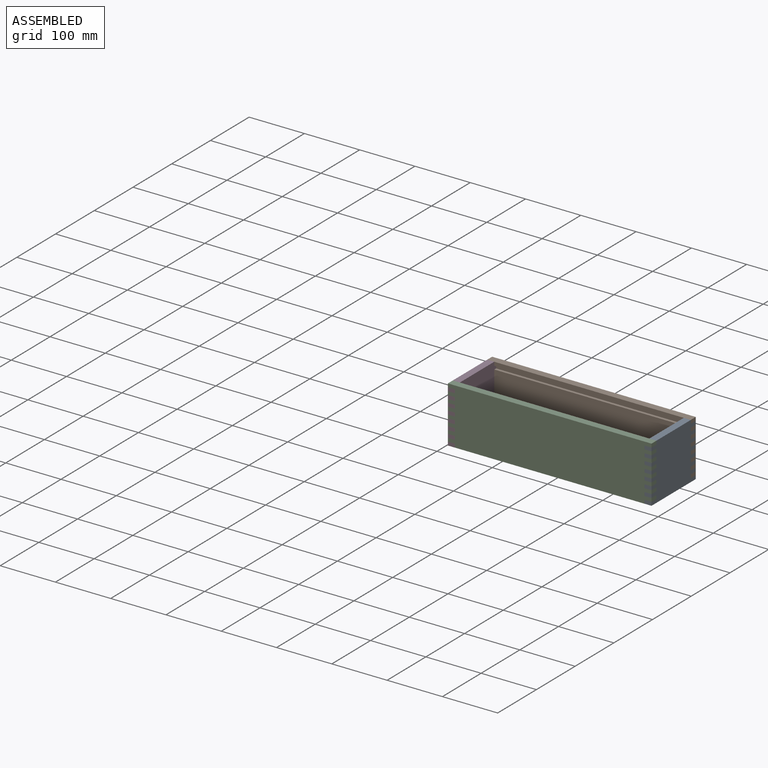
[diagram: assembled view]
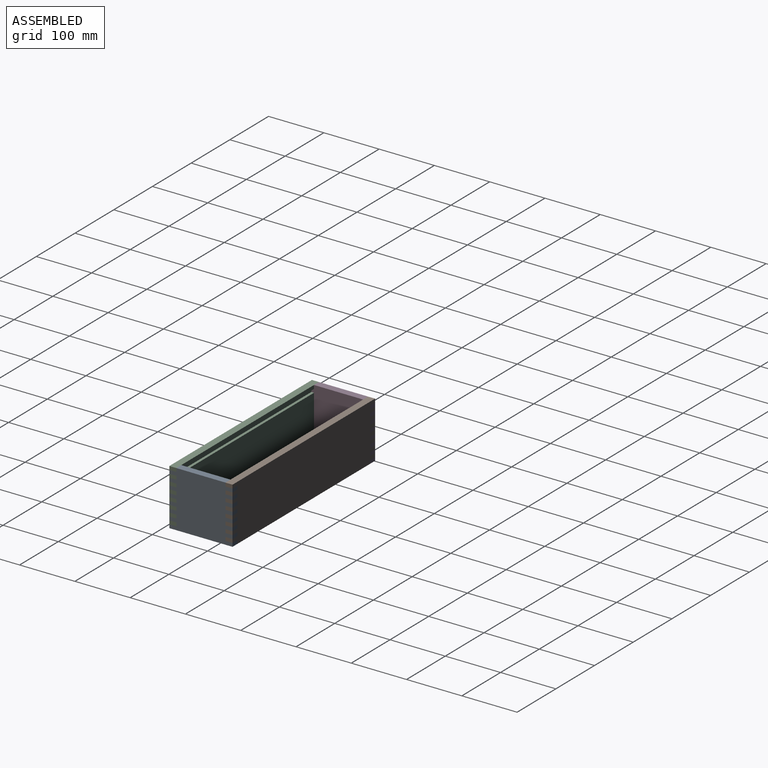
[diagram: assembled view, second angle]
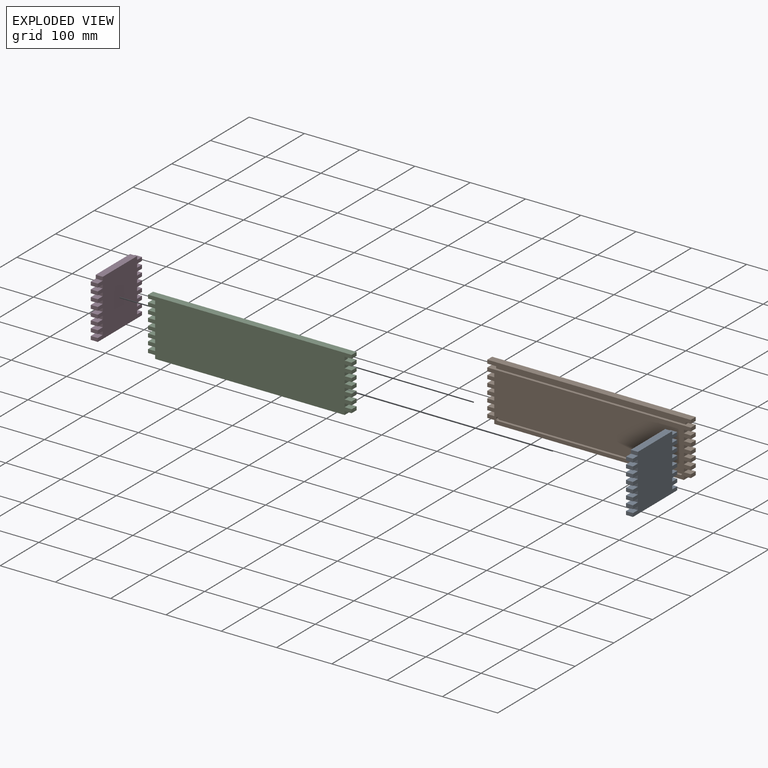
[diagram: exploded view]
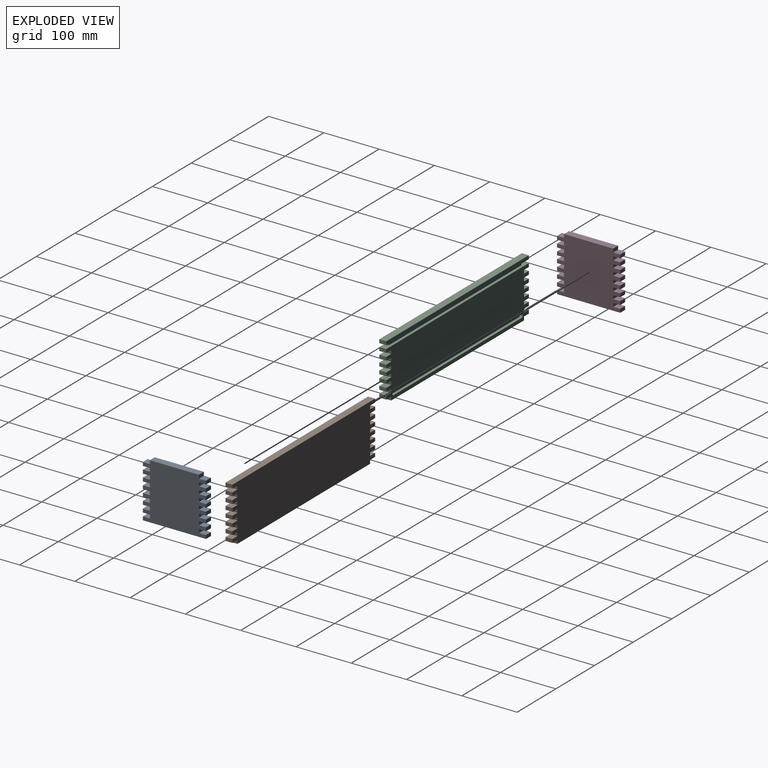
[diagram: exploded view, second angle]
ASSEMBLY  parts=4 mates=3
PART A: 66 faces, bbox 114.3x12.7x101.6 mm
  f0: plane 12.7x12.7mm, normal (0,0,1), area 161.3mm2, adj f1,f63,f64,f65
  f1: plane 12.7x6.35mm, normal (-1,0,0), area 80.6mm2, adj f0,f2,f64,f65
  f2: plane 12.7x12.7mm, normal (0,0,-1), area 161.3mm2, adj f1,f3,f64,f65
  f3: plane 12.7x6.35mm, normal (-1,0,0), area 80.6mm2, adj f2,f4,f64,f65
  f4: plane 12.7x12.7mm, normal (0,0,1), area 161.3mm2, adj f3,f5,f64,f65
  f5: plane 12.7x6.35mm, normal (-1,0,0), area 80.6mm2, adj f4,f6,f64,f65
  f6: plane 12.7x12.7mm, normal (0,0,-1), area 161.3mm2, adj f5,f7,f64,f65
  f7: plane 12.7x6.35mm, normal (-1,0,0), area 80.6mm2, adj f6,f8,f64,f65
  f8: plane 12.7x12.7mm, normal (0,0,1), area 161.3mm2, adj f7,f9,f64,f65
  f9: plane 12.7x6.35mm, normal (-1,0,0), area 80.6mm2, adj f8,f10,f64,f65
  f10: plane 12.7x12.7mm, normal (0,0,-1), area 161.3mm2, adj f9,f11,f64,f65
  f11: plane 12.7x6.35mm, normal (-1,0,0), area 80.6mm2, adj f10,f12,f64,f65
  f12: plane 12.7x12.7mm, normal (0,0,1), area 161.3mm2, adj f11,f13,f64,f65
  f13: plane 12.7x6.35mm, normal (-1,0,0), area 80.6mm2, adj f12,f14,f64,f65
  f14: plane 12.7x12.7mm, normal (0,0,-1), area 161.3mm2, adj f13,f15,f64,f65
  f15: plane 12.7x6.35mm, normal (-1,0,0), area 80.6mm2, adj f14,f16,f64,f65
  f16: plane 12.7x12.7mm, normal (0,0,1), area 161.3mm2, adj f15,f17,f64,f65
  f17: plane 12.7x6.35mm, normal (-1,0,0), area 80.6mm2, adj f16,f18,f64,f65
  f18: plane 12.7x12.7mm, normal (0,0,-1), area 161.3mm2, adj f17,f19,f64,f65
  f19: plane 12.7x6.35mm, normal (-1,0,0), area 80.6mm2, adj f18,f20,f64,f65
  f20: plane 12.7x12.7mm, normal (0,0,1), area 161.3mm2, adj f19,f21,f64,f65
  f21: plane 12.7x6.35mm, normal (-1,0,0), area 80.6mm2, adj f20,f22,f64,f65
  f22: plane 12.7x12.7mm, normal (0,0,-1), area 161.3mm2, adj f21,f23,f64,f65
  f23: plane 12.7x6.35mm, normal (-1,0,0), area 80.6mm2, adj f22,f24,f64,f65
  f24: plane 12.7x12.7mm, normal (0,0,1), area 161.3mm2, adj f23,f25,f64,f65
  f25: plane 12.7x6.35mm, normal (-1,0,0), area 80.6mm2, adj f24,f26,f64,f65
  f26: plane 12.7x12.7mm, normal (0,0,-1), area 161.3mm2, adj f25,f27,f64,f65
  f27: plane 12.7x6.35mm, normal (-1,0,0), area 80.6mm2, adj f26,f28,f64,f65
  f28: plane 12.7x12.7mm, normal (0,0,1), area 161.3mm2, adj f27,f29,f64,f65
  f29: plane 12.7x6.35mm, normal (-1,0,0), area 80.6mm2, adj f28,f30,f64,f65
  f30: plane 114.3x12.7mm, normal (0,0,-1), area 1451.6mm2, adj f29,f31,f64,f65
  f31: plane 12.7x6.35mm, normal (1,0,0), area 80.6mm2, adj f30,f32,f64,f65
  f32: plane 12.7x12.7mm, normal (0,0,1), area 161.3mm2, adj f31,f33,f64,f65
  f33: plane 12.7x6.35mm, normal (1,0,0), area 80.6mm2, adj f32,f34,f64,f65
  f34: plane 12.7x12.7mm, normal (0,0,-1), area 161.3mm2, adj f33,f35,f64,f65
  f35: plane 12.7x6.35mm, normal (1,0,0), area 80.6mm2, adj f34,f36,f64,f65
  f36: plane 12.7x12.7mm, normal (0,0,1), area 161.3mm2, adj f35,f37,f64,f65
  f37: plane 12.7x6.35mm, normal (1,0,0), area 80.6mm2, adj f36,f38,f64,f65
  f38: plane 12.7x12.7mm, normal (0,0,-1), area 161.3mm2, adj f37,f39,f64,f65
  f39: plane 12.7x6.35mm, normal (1,0,0), area 80.6mm2, adj f38,f40,f64,f65
  f40: plane 12.7x12.7mm, normal (0,0,1), area 161.3mm2, adj f39,f41,f64,f65
  f41: plane 12.7x6.35mm, normal (1,0,0), area 80.6mm2, adj f40,f42,f64,f65
  f42: plane 12.7x12.7mm, normal (0,0,-1), area 161.3mm2, adj f41,f43,f64,f65
  f43: plane 12.7x6.35mm, normal (1,0,0), area 80.6mm2, adj f42,f44,f64,f65
  f44: plane 12.7x12.7mm, normal (0,0,1), area 161.3mm2, adj f43,f45,f64,f65
  f45: plane 12.7x6.35mm, normal (1,0,0), area 80.6mm2, adj f44,f46,f64,f65
  f46: plane 12.7x12.7mm, normal (0,0,-1), area 161.3mm2, adj f45,f47,f64,f65
  f47: plane 12.7x6.35mm, normal (1,0,0), area 80.6mm2, adj f46,f48,f64,f65
  f48: plane 12.7x12.7mm, normal (0,0,1), area 161.3mm2, adj f47,f49,f64,f65
  f49: plane 12.7x6.35mm, normal (1,0,0), area 80.6mm2, adj f48,f50,f64,f65
  f50: plane 12.7x12.7mm, normal (0,0,-1), area 161.3mm2, adj f49,f51,f64,f65
  f51: plane 12.7x6.35mm, normal (1,0,0), area 80.6mm2, adj f50,f52,f64,f65
  f52: plane 12.7x12.7mm, normal (0,0,1), area 161.3mm2, adj f51,f53,f64,f65
  f53: plane 12.7x6.35mm, normal (1,0,0), area 80.6mm2, adj f52,f54,f64,f65
  f54: plane 12.7x12.7mm, normal (0,0,-1), area 161.3mm2, adj f53,f55,f64,f65
  f55: plane 12.7x6.35mm, normal (1,0,0), area 80.6mm2, adj f54,f56,f64,f65
  f56: plane 12.7x12.7mm, normal (0,0,1), area 161.3mm2, adj f55,f57,f64,f65
  f57: plane 12.7x6.35mm, normal (1,0,0), area 80.6mm2, adj f56,f58,f64,f65
  f58: plane 12.7x12.7mm, normal (0,0,-1), area 161.3mm2, adj f57,f59,f64,f65
  f59: plane 12.7x6.35mm, normal (1,0,0), area 80.6mm2, adj f58,f60,f64,f65
  f60: plane 12.7x12.7mm, normal (0,0,1), area 161.3mm2, adj f59,f61,f64,f65
  f61: plane 12.7x6.35mm, normal (1,0,0), area 80.6mm2, adj f60,f62,f64,f65
  f62: plane 88.9x12.7mm, normal (0,0,1), area 1129mm2, adj f61,f63,f64,f65
  f63: plane 12.7x6.35mm, normal (-1,0,0), area 80.6mm2, adj f0,f62,f64,f65
  f64: plane 114.3x101.6mm, normal (0,-1,0), area 10322.6mm2, adj f0,f1,f2,f3,f4,f5,f6,f7
  f65: plane 114.3x101.6mm, normal (0,1,0), area 10322.6mm2, adj f0,f1,f2,f3,f4,f5,f6,f7
PART B: 71 faces, bbox 368.3x12.7x101.6 mm
  f0: plane 368.3x88.9mm, normal (0,-1,0), area 29484.4mm2, adj f2,f3,f4,f5,f6,f7,f8,f9
  f1: plane 7.94x6.35mm, normal (-1,0,0), area 50.4mm2, adj f17,f18,f64,f65
  f2: plane 12.7x6.35mm, normal (1,0,0), area 80.6mm2, adj f0,f3,f62,f64
  f3: plane 12.7x12.7mm, normal (0,0,-1), area 161.3mm2, adj f0,f2,f4,f64
  f4: plane 12.7x6.35mm, normal (1,0,0), area 80.6mm2, adj f0,f3,f5,f64
  f5: plane 12.7x12.7mm, normal (0,0,1), area 161.3mm2, adj f0,f4,f6,f64
  f6: plane 12.7x6.35mm, normal (1,0,0), area 80.6mm2, adj f0,f5,f7,f64
  f7: plane 12.7x12.7mm, normal (0,0,-1), area 161.3mm2, adj f0,f6,f8,f64
  f8: plane 12.7x6.35mm, normal (1,0,0), area 80.6mm2, adj f0,f7,f9,f64
  f9: plane 12.7x12.7mm, normal (0,0,1), area 161.3mm2, adj f0,f8,f10,f64
  f10: plane 12.7x6.35mm, normal (1,0,0), area 80.6mm2, adj f0,f9,f11,f64
  f11: plane 12.7x12.7mm, normal (0,0,-1), area 161.3mm2, adj f0,f10,f12,f64
  f12: plane 12.7x6.35mm, normal (1,0,0), area 80.6mm2, adj f0,f11,f18,f64
  f13: plane 7.94x6.35mm, normal (1,0,0), area 50.4mm2, adj f17,f18,f64,f65
  f14: plane 12.7x6.35mm, normal (1,0,0), area 80.6mm2, adj f15,f17,f63,f64
  f15: plane 368.3x12.7mm, normal (0,0,1), area 4677.4mm2, adj f14,f16,f63,f64
  f16: plane 12.7x6.35mm, normal (-1,0,0), area 80.6mm2, adj f15,f17,f63,f64
  f17: plane 368.3x12.7mm, normal (0,0,-1), area 1955.6mm2, adj f1,f13,f14,f16,f63,f64,f65
  f18: plane 368.3x12.7mm, normal (0,0,1), area 1955.6mm2, adj f0,f1,f12,f13,f19,f64,f65
  f19: plane 12.7x6.35mm, normal (-1,0,0), area 80.6mm2, adj f0,f18,f20,f64
  f20: plane 12.7x12.7mm, normal (0,0,-1), area 161.3mm2, adj f0,f19,f21,f64
  f21: plane 12.7x6.35mm, normal (-1,0,0), area 80.6mm2, adj f0,f20,f22,f64
  f22: plane 12.7x12.7mm, normal (0,0,1), area 161.3mm2, adj f0,f21,f23,f64
  f23: plane 12.7x6.35mm, normal (-1,0,0), area 80.6mm2, adj f0,f22,f24,f64
  f24: plane 12.7x12.7mm, normal (0,0,-1), area 161.3mm2, adj f0,f23,f25,f64
  f25: plane 12.7x6.35mm, normal (-1,0,0), area 80.6mm2, adj f0,f24,f26,f64
  f26: plane 12.7x12.7mm, normal (0,0,1), area 161.3mm2, adj f0,f25,f27,f64
  f27: plane 12.7x6.35mm, normal (-1,0,0), area 80.6mm2, adj f0,f26,f28,f64
  f28: plane 12.7x12.7mm, normal (0,0,-1), area 161.3mm2, adj f0,f27,f29,f64
  f29: plane 12.7x6.35mm, normal (-1,0,0), area 80.6mm2, adj f0,f28,f30,f64
  f30: plane 12.7x12.7mm, normal (0,0,1), area 161.3mm2, adj f0,f29,f31,f64
  f31: plane 12.7x6.35mm, normal (-1,0,0), area 80.6mm2, adj f0,f30,f32,f64
  f32: plane 12.7x12.7mm, normal (0,0,-1), area 161.3mm2, adj f0,f31,f33,f64
  f33: plane 12.7x6.35mm, normal (-1,0,0), area 80.6mm2, adj f0,f32,f34,f64
  f34: plane 12.7x12.7mm, normal (0,0,1), area 161.3mm2, adj f0,f33,f35,f64
  f35: plane 12.7x6.35mm, normal (-1,0,0), area 80.6mm2, adj f0,f34,f36,f64
  f36: plane 12.7x12.7mm, normal (0,0,-1), area 161.3mm2, adj f0,f35,f37,f64
  f37: plane 12.7x6.35mm, normal (-1,0,0), area 80.6mm2, adj f0,f36,f38,f64
  f38: plane 12.7x12.7mm, normal (0,0,1), area 161.3mm2, adj f0,f37,f39,f64
  f39: plane 12.7x6.35mm, normal (-1,0,0), area 80.6mm2, adj f0,f38,f40,f64
  f40: plane 12.7x12.7mm, normal (0,0,-1), area 161.3mm2, adj f0,f39,f41,f64
  f41: plane 12.7x6.35mm, normal (-1,0,0), area 80.6mm2, adj f0,f40,f42,f64
  f42: plane 12.7x12.7mm, normal (0,0,1), area 161.3mm2, adj f0,f41,f43,f64
  f43: plane 12.7x6.35mm, normal (-1,0,0), area 80.6mm2, adj f0,f42,f44,f64
  f44: plane 12.7x12.7mm, normal (0,0,-1), area 161.3mm2, adj f0,f43,f45,f64
  f45: plane 12.7x6.35mm, normal (-1,0,0), area 80.6mm2, adj f0,f44,f46,f64
  f46: plane 342.9x12.7mm, normal (0,0,-1), area 4354.8mm2, adj f0,f45,f47,f64
  f47: plane 12.7x6.35mm, normal (1,0,0), area 80.6mm2, adj f0,f46,f48,f64
  f48: plane 12.7x12.7mm, normal (0,0,-1), area 161.3mm2, adj f0,f47,f49,f64
  f49: plane 12.7x6.35mm, normal (1,0,0), area 80.6mm2, adj f0,f48,f50,f64
  f50: plane 12.7x12.7mm, normal (0,0,1), area 161.3mm2, adj f0,f49,f51,f64
  f51: plane 12.7x6.35mm, normal (1,0,0), area 80.6mm2, adj f0,f50,f52,f64
  f52: plane 12.7x12.7mm, normal (0,0,-1), area 161.3mm2, adj f0,f51,f53,f64
  f53: plane 12.7x6.35mm, normal (1,0,0), area 80.6mm2, adj f0,f52,f54,f64
  f54: plane 12.7x12.7mm, normal (0,0,1), area 161.3mm2, adj f0,f53,f55,f64
  f55: plane 12.7x6.35mm, normal (1,0,0), area 80.6mm2, adj f0,f54,f56,f64
  f56: plane 12.7x12.7mm, normal (0,0,-1), area 161.3mm2, adj f0,f55,f57,f64
  f57: plane 12.7x6.35mm, normal (1,0,0), area 80.6mm2, adj f0,f56,f58,f64
  f58: plane 12.7x12.7mm, normal (0,0,1), area 161.3mm2, adj f0,f57,f59,f64
  f59: plane 12.7x6.35mm, normal (1,0,0), area 80.6mm2, adj f0,f58,f60,f64
  f60: plane 12.7x12.7mm, normal (0,0,-1), area 161.3mm2, adj f0,f59,f61,f64
  f61: plane 12.7x6.35mm, normal (1,0,0), area 80.6mm2, adj f0,f60,f62,f64
  f62: plane 12.7x12.7mm, normal (0,0,1), area 161.3mm2, adj f0,f2,f61,f64
  f63: plane 368.3x6.35mm, normal (0,-1,0), area 2338.7mm2, adj f14,f15,f16,f17
  f64: plane 368.3x101.6mm, normal (0,1,0), area 36129mm2, adj f1,f2,f3,f4,f5,f6,f7,f8
  f65: plane 342.9x6.35mm, normal (0,-1,0), area 2177.4mm2, adj f1,f13,f17,f18
  f66: plane 330.2x4.76mm, normal (0,0,-1), area 1572.6mm2, adj f0,f67,f69,f70
  f67: cylinder r=3.17mm len=6.35mm, axis (0,-1,0), area 47.5mm2, adj f0,f66,f68,f70
  f68: plane 330.2x4.76mm, normal (0,0,1), area 1572.6mm2, adj f0,f67,f69,f70
  f69: cylinder r=3.17mm len=6.35mm, axis (0,-1,0), area 47.5mm2, adj f0,f66,f68,f70
  f70: plane 336.55x6.35mm, normal (0,-1,0), area 2128.4mm2, adj f66,f67,f68,f69
PART C: same geometry as B
PART D: same geometry as A
PLACE A rot(axis=(0,0,1),90deg) t=(264.83,265.97,12.87)mm
PLACE B rot(axis=(-0.01,-1,0),0deg) t=(87.03,329.47,12.87)mm
PLACE C rot(axis=(0,0,1),180deg) t=(99.73,215.17,12.87)mm
PLACE D rot(axis=(0,0,-1),90deg) t=(-78.07,278.67,12.87)mm
MATE fastened C.f49 <-> D.f64  axis (-1,0,0) through (-90.77,215.17,-31.58)mm
MATE fastened C.f16 <-> A.f64  axis (1,0,0) through (277.53,215.17,57.32)mm
MATE fastened A.f64 <-> B.f14  axis (1,0,0) through (277.53,329.47,57.32)mm
